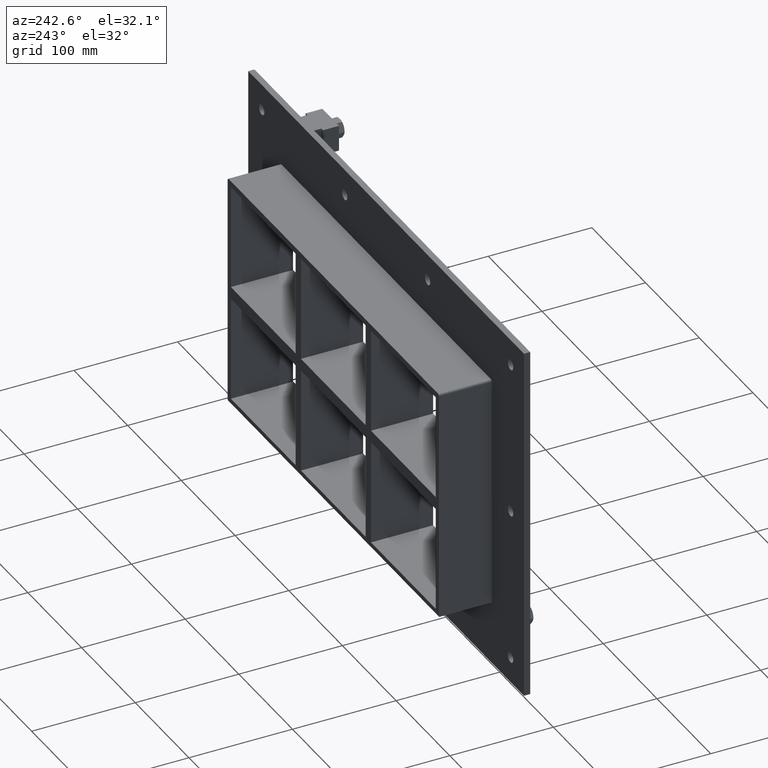
[diagram: clean part render]
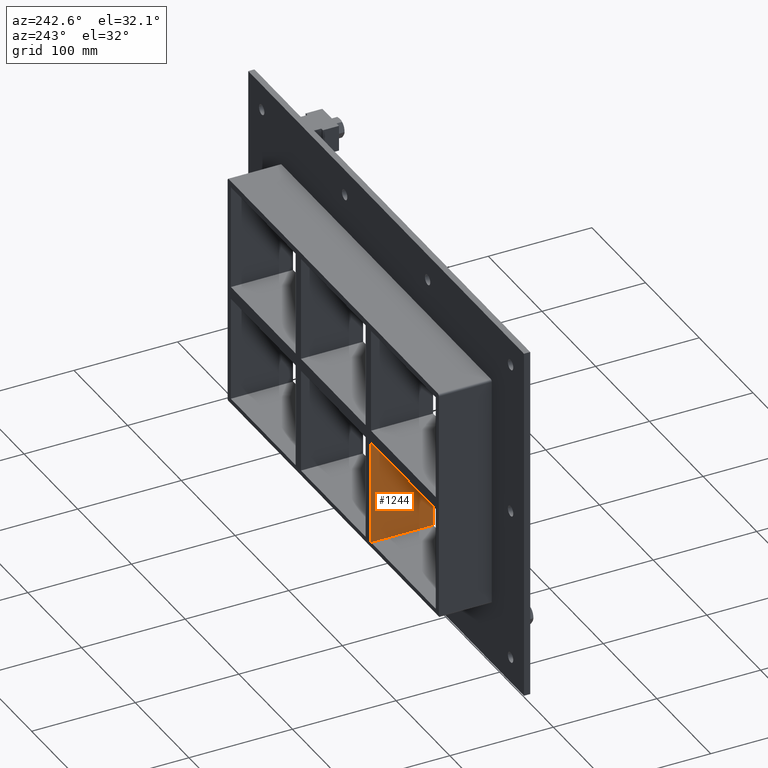
[diagram: same view with one face highlighted and labeled with its STEP entity id]
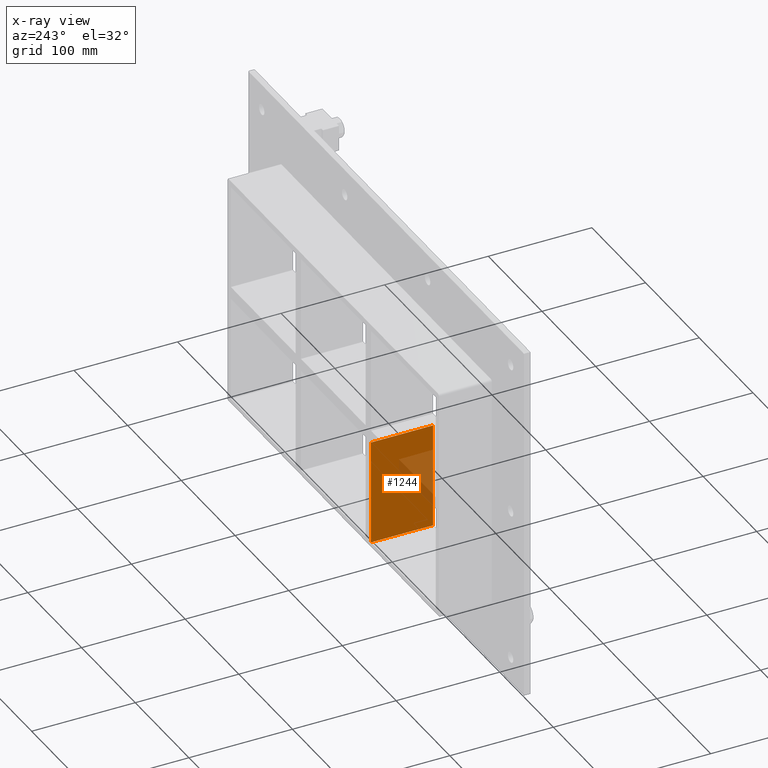
[diagram: x-ray of the same camera — body ghosted, the highlighted face saturated]
A machine part, auxiliary view. The second image highlights one B-rep face of the part: STEP entity #1244.
The next image is the same camera in x-ray: the body ghosted, the highlighted face saturated — about 19% of this face is hidden behind the body in this view.
In plain terms, the highlighted planar face has unit normal (-1, 0, 0).
Its self-contained STEP definition (entity closure, byte-faithful):
#731=CARTESIAN_POINT('',(-70.250000000000341,-3.0,-6.000000000011378));
#732=VERTEX_POINT('',#731);
#741=CARTESIAN_POINT('',(-70.250000000000341,-3.0,-107.0));
#742=VERTEX_POINT('',#741);
#743=CARTESIAN_POINT('',(-70.250000000000341,-3.0,-107.0));
#744=DIRECTION('',(0.0,0.0,1.0));
#745=VECTOR('',#744,100.9999999999886);
#746=LINE('',#743,#745);
#747=EDGE_CURVE('',#742,#732,#746,.T.);
#925=CARTESIAN_POINT('',(-70.250000000000341,57.0,-6.000000000011378));
#926=VERTEX_POINT('',#925);
#927=CARTESIAN_POINT('',(-70.250000000000355,-3.0,-6.000000000011379));
#928=DIRECTION('',(0.0,1.0,0.0));
#929=VECTOR('',#928,60.0);
#930=LINE('',#927,#929);
#931=EDGE_CURVE('',#732,#926,#930,.T.);
#1163=CARTESIAN_POINT('',(-70.250000000000341,57.0,-107.0));
#1164=VERTEX_POINT('',#1163);
#1171=CARTESIAN_POINT('',(-70.250000000000341,57.0,-107.0));
#1172=DIRECTION('',(0.0,0.0,1.0));
#1173=VECTOR('',#1172,100.9999999999886);
#1174=LINE('',#1171,#1173);
#1175=EDGE_CURVE('',#1164,#926,#1174,.T.);
#1228=CARTESIAN_POINT('',(-70.250000000000341,-3.0,-107.0));
#1229=DIRECTION('',(-1.0,0.0,0.0));
#1230=DIRECTION('',(0.0,0.0,1.0));
#1231=AXIS2_PLACEMENT_3D('',#1228,#1229,#1230);
#1232=PLANE('',#1231);
#1233=ORIENTED_EDGE('',*,*,#931,.T.);
#1234=ORIENTED_EDGE('',*,*,#1175,.F.);
#1235=CARTESIAN_POINT('',(-70.250000000000341,-3.0,-107.00000000000003));
#1236=DIRECTION('',(0.0,1.0,0.0));
#1237=VECTOR('',#1236,60.000000000000007);
#1238=LINE('',#1235,#1237);
#1239=EDGE_CURVE('',#742,#1164,#1238,.T.);
#1240=ORIENTED_EDGE('',*,*,#1239,.F.);
#1241=ORIENTED_EDGE('',*,*,#747,.T.);
#1242=EDGE_LOOP('',(#1233,#1234,#1240,#1241));
#1243=FACE_OUTER_BOUND('',#1242,.T.);
#1244=ADVANCED_FACE('',(#1243),#1232,.T.);